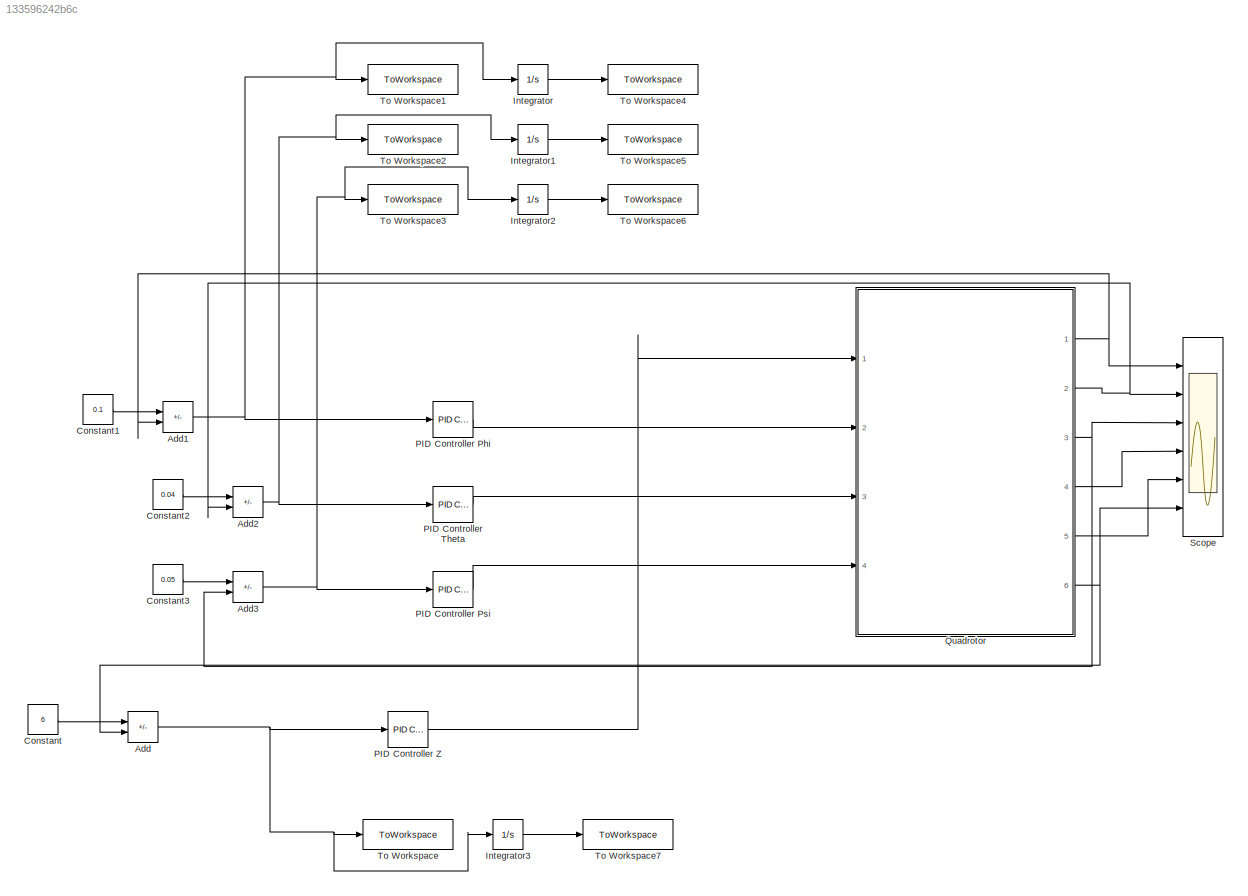
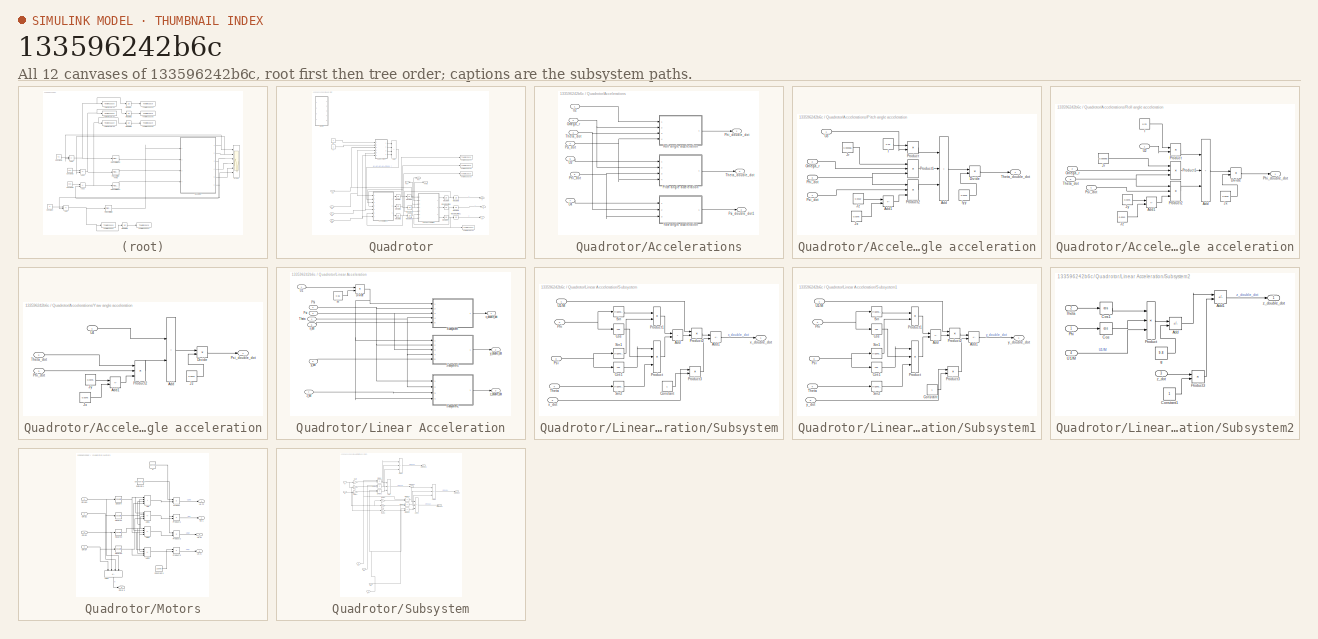
[diagram: thumbnail index - all 12 canvases of the model, root first then tree order]
MODEL slx_133596242b6c
KIND model
CONFIG AbsTol = auto
CONFIG EnableMultiTasking = off
CONFIG FixedStep = auto
CONFIG MaxStep = auto
CONFIG MinStep = auto
CONFIG RelTol = 1e-3
CONFIG SampleTimeConstraint = Unconstrained
CONFIG SolverName = VariableStepAuto
CONFIG StartTime = 0.0
CONFIG StopTime = 10.0
WORKSPACE source: mxarray member
WORKSPACE Ixx = 1
WORKSPACE Iyy: Simulink.Parameter (value not decoded)
WORKSPACE Izz = 1
BLOCK [Sum] Add
  IconShape = rectangular
  Inputs = +-
  Ports = [2, 1]
BLOCK [Sum] Add1
  IconShape = rectangular
  Inputs = +-
  Ports = [2, 1]
BLOCK [Sum] Add2
  IconShape = rectangular
  Inputs = +-
  Ports = [2, 1]
BLOCK [Sum] Add3
  IconShape = rectangular
  Inputs = +-
  Ports = [2, 1]
BLOCK [Constant] Constant
  Value = 6
BLOCK [Constant] Constant1
  Value = 0.1
BLOCK [Constant] Constant2
  Value = 0.04
BLOCK [Constant] Constant3
  Value = 0.05
BLOCK [Integrator] Integrator
  Ports = [1, 1]
BLOCK [Integrator] Integrator1
  Ports = [1, 1]
BLOCK [Integrator] Integrator2
  Ports = [1, 1]
BLOCK [Integrator] Integrator3
  Ports = [1, 1]
BLOCK [Reference] PID Controller Phi  REF=slpidlib/PID Controller
  Ports = [1, 1]
  SourceBlock = slpidlib/PID Controller
  SourceProductBaseCode = SL
  SourceType = PID 1dof
BLOCK [Reference] PID Controller Psi  REF=slpidlib/PID Controller
  Ports = [1, 1]
  SourceBlock = slpidlib/PID Controller
  SourceProductBaseCode = SL
  SourceType = PID 1dof
BLOCK [Reference] PID Controller Theta  REF=slpidlib/PID Controller
  Ports = [1, 1]
  SourceBlock = slpidlib/PID Controller
  SourceProductBaseCode = SL
  SourceType = PID 1dof
BLOCK [Reference] PID Controller Z  REF=slpidlib/PID Controller
  Ports = [1, 1]
  SourceBlock = slpidlib/PID Controller
  SourceProductBaseCode = SL
  SourceType = PID 1dof
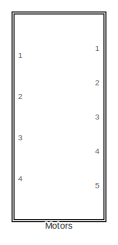
[diagram: Quadrotor - part 1/2, top left region]
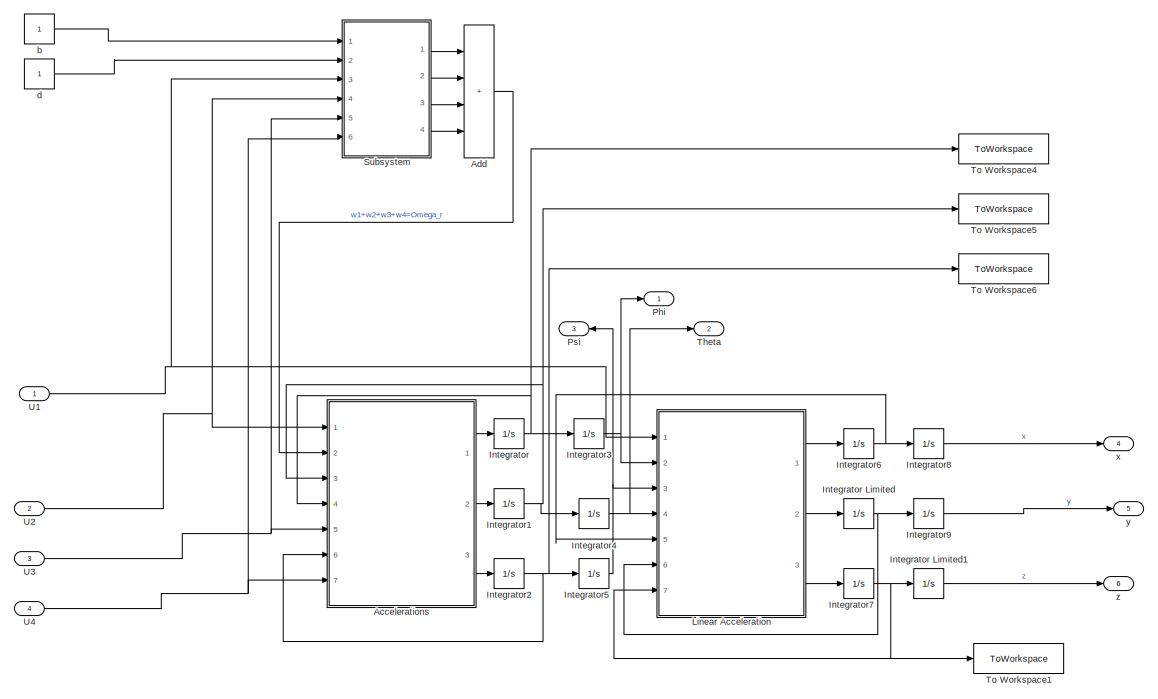
[diagram: Quadrotor - part 2/2, full width, middle band]
BLOCK [SubSystem] Quadrotor
  Ports = [4, 6]
  RequestExecContextInheritance = off
BLOCK [SubSystem] Quadrotor/Accelerations
  Ports = [7, 3]
  RequestExecContextInheritance = off
BLOCK [Inport] Quadrotor/Accelerations/Omega_r
  Port = 2
BLOCK [Inport] Quadrotor/Accelerations/Phi_dot
  Port = 6
BLOCK [Outport] Quadrotor/Accelerations/Phi_double_dot
BLOCK [SubSystem] Quadrotor/Accelerations/Pitch angle acceleration
  Ports = [4, 1]
  RequestExecContextInheritance = off
BLOCK [Sum] Quadrotor/Accelerations/Pitch angle acceleration/Add
  IconShape = rectangular
  Inputs = +++
  Ports = [3, 1]
BLOCK [Sum] Quadrotor/Accelerations/Pitch angle acceleration/Add1
  IconShape = rectangular
  Inputs = +-
  Ports = [2, 1]
BLOCK [Product] Quadrotor/Accelerations/Pitch angle acceleration/Divide
  Inputs = */
  Ports = [2, 1]
BLOCK [Constant] Quadrotor/Accelerations/Pitch angle acceleration/I
  Value = 0.23
BLOCK [Constant] Quadrotor/Accelerations/Pitch angle acceleration/Iyy
  Value = 0.0075
BLOCK [Constant] Quadrotor/Accelerations/Pitch angle acceleration/Jr
  Value = 0.000065
BLOCK [Constant] Quadrotor/Accelerations/Pitch angle acceleration/Jx
  Value = 0.0075
BLOCK [Constant] Quadrotor/Accelerations/Pitch angle acceleration/Jz
  Value = 0.0013
BLOCK [Inport] Quadrotor/Accelerations/Pitch angle acceleration/Omega_r
  Port = 2
BLOCK [Inport] Quadrotor/Accelerations/Pitch angle acceleration/Phi_dot
  Port = 3
BLOCK [Product] Quadrotor/Accelerations/Pitch angle acceleration/Product
  Ports = [2, 1]
BLOCK [Product] Quadrotor/Accelerations/Pitch angle acceleration/Product1
  Inputs = 3
  Ports = [3, 1]
BLOCK [Product] Quadrotor/Accelerations/Pitch angle acceleration/Product2
  Inputs = 3
  Ports = [3, 1]
BLOCK [Inport] Quadrotor/Accelerations/Pitch angle acceleration/Psi_dot
  Port = 4
BLOCK [Outport] Quadrotor/Accelerations/Pitch angle acceleration/Theta_double_dot
BLOCK [Inport] Quadrotor/Accelerations/Pitch angle acceleration/U3
BLOCK [Inport] Quadrotor/Accelerations/Psi_dot
  Port = 4
BLOCK [Outport] Quadrotor/Accelerations/Psi_double_dot1
  Port = 3
BLOCK [SubSystem] Quadrotor/Accelerations/Roll angle acceleration
  Ports = [4, 1]
  RequestExecContextInheritance = off
BLOCK [Sum] Quadrotor/Accelerations/Roll angle acceleration/Add
  IconShape = rectangular
  Inputs = +++
  Ports = [3, 1]
BLOCK [Sum] Quadrotor/Accelerations/Roll angle acceleration/Add1
  IconShape = rectangular
  Inputs = +-
  Ports = [2, 1]
BLOCK [Product] Quadrotor/Accelerations/Roll angle acceleration/Divide
  Inputs = */
  Ports = [2, 1]
BLOCK [Constant] Quadrotor/Accelerations/Roll angle acceleration/I
  Value = 0.23
BLOCK [Constant] Quadrotor/Accelerations/Roll angle acceleration/Jr
  Value = 0.000065
BLOCK [Constant] Quadrotor/Accelerations/Roll angle acceleration/Jx
  Value = 0.0075
BLOCK [Constant] Quadrotor/Accelerations/Roll angle acceleration/Jy
  Value = 0.0075
BLOCK [Constant] Quadrotor/Accelerations/Roll angle acceleration/Jz
  Value = 0.0013
BLOCK [Inport] Quadrotor/Accelerations/Roll angle acceleration/Omega_r
  Port = 2
BLOCK [Outport] Quadrotor/Accelerations/Roll angle acceleration/Phi_double_dot
BLOCK [Product] Quadrotor/Accelerations/Roll angle acceleration/Product
  Ports = [2, 1]
BLOCK [Product] Quadrotor/Accelerations/Roll angle acceleration/Product1
  Inputs = 3
  Ports = [3, 1]
BLOCK [Product] Quadrotor/Accelerations/Roll angle acceleration/Product2
  Inputs = 3
  Ports = [3, 1]
BLOCK [Inport] Quadrotor/Accelerations/Roll angle acceleration/Psi_dot
  Port = 4
BLOCK [Inport] Quadrotor/Accelerations/Roll angle acceleration/Theta_dot
  Port = 3
BLOCK [Inport] Quadrotor/Accelerations/Roll angle acceleration/U2
BLOCK [Inport] Quadrotor/Accelerations/Theta_dot
  Port = 3
BLOCK [Outport] Quadrotor/Accelerations/Theta_double_dot
  Port = 2
BLOCK [Inport] Quadrotor/Accelerations/U2
BLOCK [Inport] Quadrotor/Accelerations/U3
  Port = 5
BLOCK [Inport] Quadrotor/Accelerations/U4
  Port = 7
BLOCK [SubSystem] Quadrotor/Accelerations/Yaw angle acceleration
  Ports = [3, 1]
  RequestExecContextInheritance = off
BLOCK [Sum] Quadrotor/Accelerations/Yaw angle acceleration/Add
  IconShape = rectangular
  Ports = [2, 1]
BLOCK [Sum] Quadrotor/Accelerations/Yaw angle acceleration/Add1
  IconShape = rectangular
  Inputs = +-
  Ports = [2, 1]
BLOCK [Product] Quadrotor/Accelerations/Yaw angle acceleration/Divide
  Inputs = */
  Ports = [2, 1]
BLOCK [Constant] Quadrotor/Accelerations/Yaw angle acceleration/Jx
  Value = 0.0075
BLOCK [Constant] Quadrotor/Accelerations/Yaw angle acceleration/Jy
  Value = 0.0075
BLOCK [Constant] Quadrotor/Accelerations/Yaw angle acceleration/Jz
  Value = 0.0013
BLOCK [Inport] Quadrotor/Accelerations/Yaw angle acceleration/Phi_dot
  Port = 3
BLOCK [Product] Quadrotor/Accelerations/Yaw angle acceleration/Product2
  Inputs = 3
  Ports = [3, 1]
BLOCK [Outport] Quadrotor/Accelerations/Yaw angle acceleration/Psi_double_dot
BLOCK [Inport] Quadrotor/Accelerations/Yaw angle acceleration/Theta_dot
  Port = 2
BLOCK [Inport] Quadrotor/Accelerations/Yaw angle acceleration/U4
BLOCK [Sum] Quadrotor/Add
  IconShape = rectangular
  Inputs = ++++
  Ports = [4, 1]
BLOCK [Integrator] Quadrotor/Integrator
  Ports = [1, 1]
BLOCK [Integrator] Quadrotor/Integrator Limited
  LimitOutput = on
  LowerSaturationLimit = 0
  Ports = [1, 1]
  UpperSaturationLimit = 1
BLOCK [Integrator] Quadrotor/Integrator Limited1
  LimitOutput = on
  LowerSaturationLimit = 0
  Ports = [1, 1]
  UpperSaturationLimit = 1
BLOCK [Integrator] Quadrotor/Integrator1
  Ports = [1, 1]
BLOCK [Integrator] Quadrotor/Integrator2
  Ports = [1, 1]
BLOCK [Integrator] Quadrotor/Integrator3
  Ports = [1, 1]
BLOCK [Integrator] Quadrotor/Integrator4
  Ports = [1, 1]
BLOCK [Integrator] Quadrotor/Integrator5
  Ports = [1, 1]
BLOCK [Integrator] Quadrotor/Integrator6
  Ports = [1, 1]
BLOCK [Integrator] Quadrotor/Integrator7
  Ports = [1, 1]
BLOCK [Integrator] Quadrotor/Integrator8
  Ports = [1, 1]
BLOCK [Integrator] Quadrotor/Integrator9
  Ports = [1, 1]
BLOCK [SubSystem] Quadrotor/Linear Acceleration
  Ports = [7, 3]
  RequestExecContextInheritance = off
BLOCK [Product] Quadrotor/Linear Acceleration/Divide
  Inputs = */
  Ports = [2, 1]
BLOCK [Inport] Quadrotor/Linear Acceleration/Phi
  Port = 2
BLOCK [Inport] Quadrotor/Linear Acceleration/Psi
  Port = 3
BLOCK [SubSystem] Quadrotor/Linear Acceleration/Subsystem
  Ports = [5, 1]
  RequestExecContextInheritance = off
BLOCK [Sum] Quadrotor/Linear Acceleration/Subsystem/Add
  IconShape = rectangular
  Ports = [2, 1]
BLOCK [Sum] Quadrotor/Linear Acceleration/Subsystem/Add1
  IconShape = rectangular
  Inputs = +-
  Ports = [2, 1]
BLOCK [Constant] Quadrotor/Linear Acceleration/Subsystem/Constant
BLOCK [Trigonometry] Quadrotor/Linear Acceleration/Subsystem/Cos
  Operator = cos
  Ports = [1, 1]
BLOCK [Trigonometry] Quadrotor/Linear Acceleration/Subsystem/Cos1
  Operator = cos
  Ports = [1, 1]
BLOCK [Inport] Quadrotor/Linear Acceleration/Subsystem/Phi
  Port = 2
BLOCK [Product] Quadrotor/Linear Acceleration/Subsystem/Product
  Inputs = 3
  Ports = [3, 1]
BLOCK [Product] Quadrotor/Linear Acceleration/Subsystem/Product1
  Ports = [2, 1]
BLOCK [Product] Quadrotor/Linear Acceleration/Subsystem/Product2
  Ports = [2, 1]
BLOCK [Product] Quadrotor/Linear Acceleration/Subsystem/Product3
  Ports = [2, 1]
BLOCK [Inport] Quadrotor/Linear Acceleration/Subsystem/Psi
  Port = 3
BLOCK [Trigonometry] Quadrotor/Linear Acceleration/Subsystem/Sin
  Ports = [1, 1]
BLOCK [Trigonometry] Quadrotor/Linear Acceleration/Subsystem/Sin1
  Ports = [1, 1]
BLOCK [Trigonometry] Quadrotor/Linear Acceleration/Subsystem/Sin2
  Ports = [1, 1]
BLOCK [Inport] Quadrotor/Linear Acceleration/Subsystem/Theta
  Port = 4
BLOCK [Inport] Quadrotor/Linear Acceleration/Subsystem/U1//M
BLOCK [Inport] Quadrotor/Linear Acceleration/Subsystem/x_dot
  Port = 5
BLOCK [Outport] Quadrotor/Linear Acceleration/Subsystem/x_double_dot
BLOCK [SubSystem] Quadrotor/Linear Acceleration/Subsystem1
  Ports = [5, 1]
  RequestExecContextInheritance = off
BLOCK [Sum] Quadrotor/Linear Acceleration/Subsystem1/Add
  IconShape = rectangular
  Inputs = +-
  Ports = [2, 1]
BLOCK [Sum] Quadrotor/Linear Acceleration/Subsystem1/Add1
  IconShape = rectangular
  Inputs = +-
  Ports = [2, 1]
BLOCK [Constant] Quadrotor/Linear Acceleration/Subsystem1/Constant
BLOCK [Trigonometry] Quadrotor/Linear Acceleration/Subsystem1/Cos
  Operator = cos
  Ports = [1, 1]
BLOCK [Trigonometry] Quadrotor/Linear Acceleration/Subsystem1/Cos1
  Operator = cos
  Ports = [1, 1]
BLOCK [Inport] Quadrotor/Linear Acceleration/Subsystem1/Phi
  Port = 2
BLOCK [Product] Quadrotor/Linear Acceleration/Subsystem1/Product
  Inputs = 3
  Ports = [3, 1]
BLOCK [Product] Quadrotor/Linear Acceleration/Subsystem1/Product1
  Ports = [2, 1]
BLOCK [Product] Quadrotor/Linear Acceleration/Subsystem1/Product2
  Ports = [2, 1]
BLOCK [Product] Quadrotor/Linear Acceleration/Subsystem1/Product3
  Ports = [2, 1]
BLOCK [Inport] Quadrotor/Linear Acceleration/Subsystem1/Psi
  Port = 3
BLOCK [Trigonometry] Quadrotor/Linear Acceleration/Subsystem1/Sin
  Ports = [1, 1]
BLOCK [Trigonometry] Quadrotor/Linear Acceleration/Subsystem1/Sin1
  Ports = [1, 1]
BLOCK [Trigonometry] Quadrotor/Linear Acceleration/Subsystem1/Sin2
  Ports = [1, 1]
BLOCK [Inport] Quadrotor/Linear Acceleration/Subsystem1/Theta
  Port = 4
BLOCK [Inport] Quadrotor/Linear Acceleration/Subsystem1/U1//M
BLOCK [Inport] Quadrotor/Linear Acceleration/Subsystem1/y_dot
  Port = 5
BLOCK [Outport] Quadrotor/Linear Acceleration/Subsystem1/y_double_dot
BLOCK [SubSystem] Quadrotor/Linear Acceleration/Subsystem2
  Ports = [4, 1]
  RequestExecContextInheritance = off
BLOCK [Sum] Quadrotor/Linear Acceleration/Subsystem2/Add
  IconShape = rectangular
  Inputs = +-
  Ports = [2, 1]
BLOCK [Sum] Quadrotor/Linear Acceleration/Subsystem2/Add1
  IconShape = rectangular
  Inputs = +-
  Ports = [2, 1]
BLOCK [Constant] Quadrotor/Linear Acceleration/Subsystem2/Constant1
BLOCK [Trigonometry] Quadrotor/Linear Acceleration/Subsystem2/Cos
  Operator = cos
  Ports = [1, 1]
BLOCK [Trigonometry] Quadrotor/Linear Acceleration/Subsystem2/Cos1
  Operator = cos
  Ports = [1, 1]
BLOCK [Inport] Quadrotor/Linear Acceleration/Subsystem2/Phi
BLOCK [Product] Quadrotor/Linear Acceleration/Subsystem2/Product
  Inputs = 3
  Ports = [3, 1]
BLOCK [Product] Quadrotor/Linear Acceleration/Subsystem2/Product3
  Ports = [2, 1]
BLOCK [Inport] Quadrotor/Linear Acceleration/Subsystem2/Theta
  Port = 2
BLOCK [Inport] Quadrotor/Linear Acceleration/Subsystem2/U1//M
  Port = 4
BLOCK [Constant] Quadrotor/Linear Acceleration/Subsystem2/g
  Value = 9.8
BLOCK [Inport] Quadrotor/Linear Acceleration/Subsystem2/z_dot
  Port = 3
BLOCK [Outport] Quadrotor/Linear Acceleration/Subsystem2/z_double_dot
BLOCK [Inport] Quadrotor/Linear Acceleration/Theta
  Port = 4
BLOCK [Inport] Quadrotor/Linear Acceleration/U1
BLOCK [Constant] Quadrotor/Linear Acceleration/m
  Value = 0.65
BLOCK [Inport] Quadrotor/Linear Acceleration/x_dot
  Port = 5
BLOCK [Outport] Quadrotor/Linear Acceleration/x_double_dot
BLOCK [Inport] Quadrotor/Linear Acceleration/y_dot
  Port = 6
BLOCK [Outport] Quadrotor/Linear Acceleration/y_double_dot
  Port = 2
BLOCK [Inport] Quadrotor/Linear Acceleration/z_dot
  Port = 7
BLOCK [Outport] Quadrotor/Linear Acceleration/z_double_dot
  Port = 3
BLOCK [SubSystem] Quadrotor/Motors
  Commented = on
  Ports = [4, 5]
  RequestExecContextInheritance = off
BLOCK [Sum] Quadrotor/Motors/Add
  IconShape = rectangular
  Inputs = ++++
  Ports = [4, 1]
BLOCK [Sum] Quadrotor/Motors/Add1
  IconShape = rectangular
  Inputs = +--+
  Ports = [4, 1]
BLOCK [Sum] Quadrotor/Motors/Add2
  IconShape = rectangular
  Inputs = --++
  Ports = [4, 1]
BLOCK [Sum] Quadrotor/Motors/Add3
  IconShape = rectangular
  Inputs = +-+-
  Ports = [4, 1]
BLOCK [Sum] Quadrotor/Motors/Add4
  IconShape = rectangular
  Inputs = -+-+
  NameLocation = left
  Ports = [4, 1]
BLOCK [Constant] Quadrotor/Motors/Constant1
  Value = 2.08e-6
BLOCK [Inport] Quadrotor/Motors/Omeg1
BLOCK [Outport] Quadrotor/Motors/Omg 5
  Port = 5
BLOCK [Inport] Quadrotor/Motors/Omg2
  Port = 2
BLOCK [Inport] Quadrotor/Motors/Omg3
  Port = 3
BLOCK [Inport] Quadrotor/Motors/Omg4
  Port = 4
BLOCK [Product] Quadrotor/Motors/Product
  Ports = [2, 1]
BLOCK [Product] Quadrotor/Motors/Product1
  Ports = [2, 1]
BLOCK [Product] Quadrotor/Motors/Product2
  Ports = [2, 1]
BLOCK [Product] Quadrotor/Motors/Product3
  Ports = [2, 1]
BLOCK [Math] Quadrotor/Motors/Square
  Operator = square
  Ports = [1, 1]
BLOCK [Math] Quadrotor/Motors/Square1
  Operator = square
  Ports = [1, 1]
BLOCK [Math] Quadrotor/Motors/Square2
  Operator = square
  Ports = [1, 1]
BLOCK [Math] Quadrotor/Motors/Square3
  Operator = square
  Ports = [1, 1]
BLOCK [Outport] Quadrotor/Motors/U1,Fz
BLOCK [Outport] Quadrotor/Motors/U2,L
  Port = 2
BLOCK [Outport] Quadrotor/Motors/U3,M
  Port = 3
BLOCK [Outport] Quadrotor/Motors/U4,N
  Port = 4
BLOCK [Constant] Quadrotor/Motors/b
  Value = 0.04439
BLOCK [Constant] Quadrotor/Motors/bsin(pi//4)
  Value = 0.04439*sin(pi/4)
BLOCK [Outport] Quadrotor/Phi
BLOCK [Outport] Quadrotor/Psi
  Port = 3
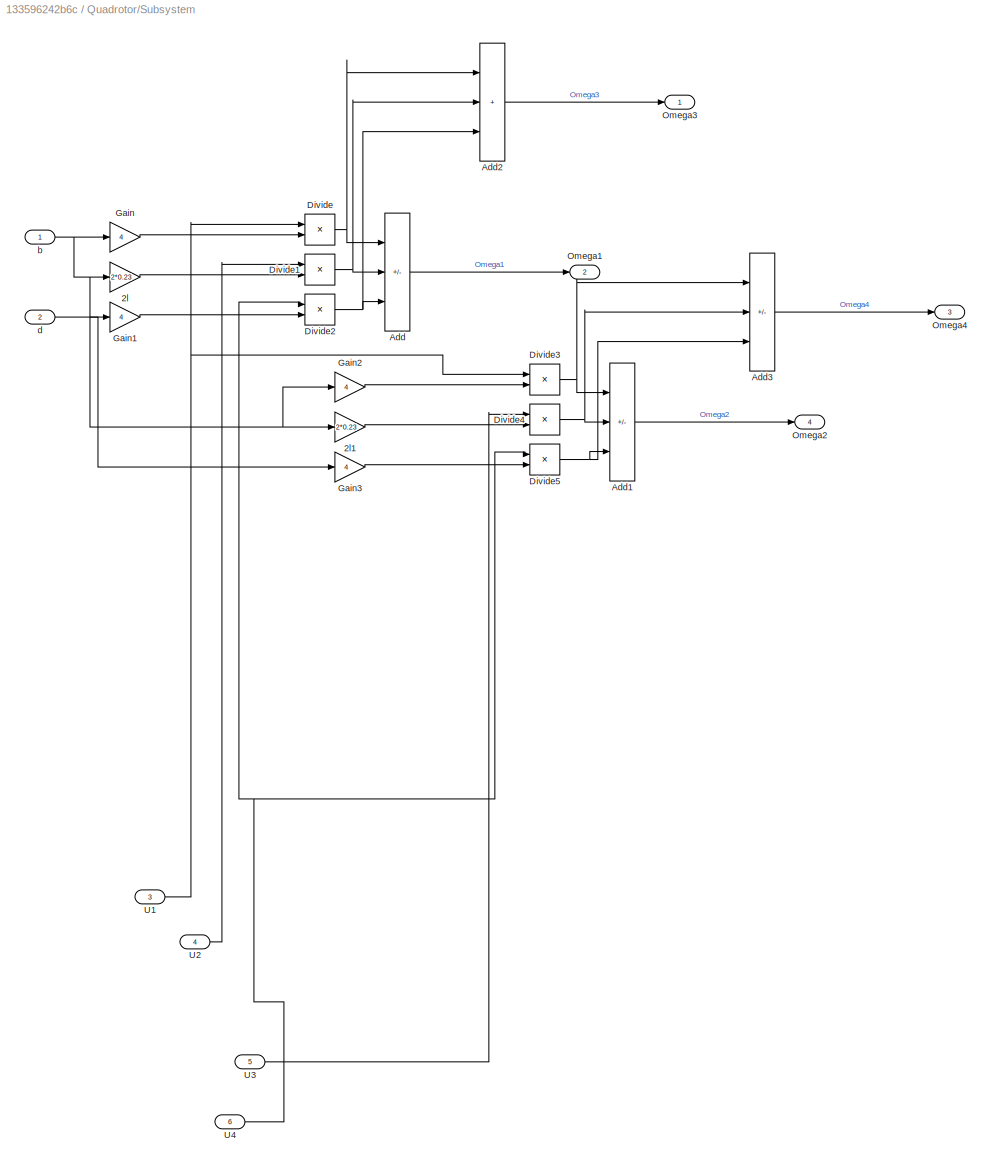
BLOCK [SubSystem] Quadrotor/Subsystem
  Ports = [6, 4]
  RequestExecContextInheritance = off
BLOCK [Gain] Quadrotor/Subsystem/2l
  Gain = 2*0.23
BLOCK [Gain] Quadrotor/Subsystem/2l1
  Gain = 2*0.23
BLOCK [Sum] Quadrotor/Subsystem/Add
  IconShape = rectangular
  Inputs = +-+
  Ports = [3, 1]
BLOCK [Sum] Quadrotor/Subsystem/Add1
  IconShape = rectangular
  Inputs = ++-
  Ports = [3, 1]
BLOCK [Sum] Quadrotor/Subsystem/Add2
  IconShape = rectangular
  Inputs = +++
  Ports = [3, 1]
BLOCK [Sum] Quadrotor/Subsystem/Add3
  IconShape = rectangular
  Inputs = +--
  Ports = [3, 1]
BLOCK [Product] Quadrotor/Subsystem/Divide
  Inputs = */
  Ports = [2, 1]
BLOCK [Product] Quadrotor/Subsystem/Divide1
  Inputs = */
  Ports = [2, 1]
BLOCK [Product] Quadrotor/Subsystem/Divide2
  Inputs = */
  Ports = [2, 1]
BLOCK [Product] Quadrotor/Subsystem/Divide3
  Inputs = */
  Ports = [2, 1]
BLOCK [Product] Quadrotor/Subsystem/Divide4
  Inputs = */
  Ports = [2, 1]
BLOCK [Product] Quadrotor/Subsystem/Divide5
  Inputs = */
  Ports = [2, 1]
BLOCK [Gain] Quadrotor/Subsystem/Gain
  Gain = 4
BLOCK [Gain] Quadrotor/Subsystem/Gain1
  Gain = 4
BLOCK [Gain] Quadrotor/Subsystem/Gain2
  Gain = 4
BLOCK [Gain] Quadrotor/Subsystem/Gain3
  Gain = 4
BLOCK [Outport] Quadrotor/Subsystem/Omega1
  Port = 2
BLOCK [Outport] Quadrotor/Subsystem/Omega2
  Port = 4
BLOCK [Outport] Quadrotor/Subsystem/Omega3
BLOCK [Outport] Quadrotor/Subsystem/Omega4
  Port = 3
BLOCK [Inport] Quadrotor/Subsystem/U1
  Port = 3
BLOCK [Inport] Quadrotor/Subsystem/U2
  Port = 4
BLOCK [Inport] Quadrotor/Subsystem/U3
  Port = 5
BLOCK [Inport] Quadrotor/Subsystem/U4
  Port = 6
BLOCK [Inport] Quadrotor/Subsystem/b
BLOCK [Inport] Quadrotor/Subsystem/d
  Port = 2
BLOCK [Outport] Quadrotor/Theta
  Port = 2
BLOCK [ToWorkspace] Quadrotor/To Workspace1
  FixptAsFi = on
  MaxDataPoints = inf
  Ports = [1]
  SampleTime = -1
  SaveFormat = Timeseries
  VariableName = z_dot
BLOCK [ToWorkspace] Quadrotor/To Workspace4
  FixptAsFi = on
  MaxDataPoints = inf
  Ports = [1]
  SampleTime = -1
  SaveFormat = Timeseries
  VariableName = phi_dot
BLOCK [ToWorkspace] Quadrotor/To Workspace5
  FixptAsFi = on
  MaxDataPoints = inf
  Ports = [1]
  SampleTime = -1
  SaveFormat = Timeseries
  VariableName = theta_dot
BLOCK [ToWorkspace] Quadrotor/To Workspace6
  FixptAsFi = on
  MaxDataPoints = inf
  Ports = [1]
  SampleTime = -1
  SaveFormat = Timeseries
  VariableName = psi_dot
BLOCK [Inport] Quadrotor/U1
BLOCK [Inport] Quadrotor/U2
  Port = 2
BLOCK [Inport] Quadrotor/U3
  Port = 3
BLOCK [Inport] Quadrotor/U4
  Port = 4
BLOCK [Constant] Quadrotor/b
BLOCK [Constant] Quadrotor/d
BLOCK [Outport] Quadrotor/x
  Port = 4
BLOCK [Outport] Quadrotor/y
  Port = 5
BLOCK [Outport] Quadrotor/z
  Port = 6
BLOCK [Scope] Scope
  Floating = off
  NumInputPorts = 6
  Ports = [6]
  ScopeSpecificationString = Simulink.scopes.TimeScopeBlockCfg('CurrentConfiguration', extmgr.ConfigurationSet(extmgr.Configuration('Core','General UI',true),extmgr.Configuration('Core','Source UI',true),extmgr.Configuration('Sources','WiredSimulink',true),extmgr.Configuration('Visuals','Time Domain',true,'SerializedDisplays',{struct('MinYLimReal','-2.26997','MaxYLimReal','20.42976','YLabelReal','','MinYLimMag','0.00000','Max...<+1616ch>
BLOCK [ToWorkspace] To Workspace
  FixptAsFi = on
  MaxDataPoints = inf
  Ports = [1]
  SampleTime = -1
  SaveFormat = Timeseries
  VariableName = e_z
BLOCK [ToWorkspace] To Workspace1
  FixptAsFi = on
  MaxDataPoints = inf
  Ports = [1]
  SampleTime = -1
  SaveFormat = Timeseries
  VariableName = e_phi
BLOCK [ToWorkspace] To Workspace2
  FixptAsFi = on
  MaxDataPoints = inf
  Ports = [1]
  SampleTime = -1
  SaveFormat = Timeseries
  VariableName = e_theta
BLOCK [ToWorkspace] To Workspace3
  FixptAsFi = on
  MaxDataPoints = inf
  Ports = [1]
  SampleTime = -1
  SaveFormat = Timeseries
  VariableName = e_psi
BLOCK [ToWorkspace] To Workspace4
  FixptAsFi = on
  MaxDataPoints = inf
  Ports = [1]
  SampleTime = -1
  SaveFormat = Timeseries
  VariableName = Int_e_phi
BLOCK [ToWorkspace] To Workspace5
  FixptAsFi = on
  MaxDataPoints = inf
  Ports = [1]
  SampleTime = -1
  SaveFormat = Timeseries
  VariableName = Int_e_theta
BLOCK [ToWorkspace] To Workspace6
  FixptAsFi = on
  MaxDataPoints = inf
  Ports = [1]
  SampleTime = -1
  SaveFormat = Timeseries
  VariableName = Int_e_psi
BLOCK [ToWorkspace] To Workspace7
  FixptAsFi = on
  MaxDataPoints = inf
  Ports = [1]
  SampleTime = -1
  SaveFormat = Timeseries
  VariableName = Int_e_z
NET Add1:1 -> Integrator:1, PID Controller Phi:1, To Workspace1:1
NET Add2:1 -> Integrator1:1, PID Controller Theta:1, To Workspace2:1
NET Add3:1 -> Integrator2:1, PID Controller Psi:1, To Workspace3:1
NET Add:1 -> Integrator3:1, PID Controller Z:1, To Workspace:1
LINE Constant1:1 -> Add1:1
LINE Constant2:1 -> Add2:1
LINE Constant3:1 -> Add3:1
LINE Constant:1 -> Add:1
LINE Integrator1:1 -> To Workspace5:1
LINE Integrator2:1 -> To Workspace6:1
LINE Integrator3:1 -> To Workspace7:1
LINE Integrator:1 -> To Workspace4:1
LINE PID Controller Phi:1 -> Quadrotor:2
LINE PID Controller Psi:1 -> Quadrotor:4
LINE PID Controller Theta:1 -> Quadrotor:3
LINE PID Controller Z:1 -> Quadrotor:1
NET Quadrotor/Accelerations/Omega_r:1 -> Quadrotor/Accelerations/Pitch angle acceleration:2, Quadrotor/Accelerations/Roll angle acceleration:2
NET Quadrotor/Accelerations/Phi_dot:1 -> Quadrotor/Accelerations/Pitch angle acceleration:3, Quadrotor/Accelerations/Yaw angle acceleration:3
LINE Quadrotor/Accelerations/Pitch angle acceleration/Add1:1 -> Quadrotor/Accelerations/Pitch angle acceleration/Product2:3
LINE Quadrotor/Accelerations/Pitch angle acceleration/Add:1 -> Quadrotor/Accelerations/Pitch angle acceleration/Divide:1
LINE Quadrotor/Accelerations/Pitch angle acceleration/Divide:1 -> Quadrotor/Accelerations/Pitch angle acceleration/Theta_double_dot:1
LINE Quadrotor/Accelerations/Pitch angle acceleration/I:1 -> Quadrotor/Accelerations/Pitch angle acceleration/Product:1
LINE Quadrotor/Accelerations/Pitch angle acceleration/Iyy:1 -> Quadrotor/Accelerations/Pitch angle acceleration/Divide:2
LINE Quadrotor/Accelerations/Pitch angle acceleration/Jr:1 -> Quadrotor/Accelerations/Pitch angle acceleration/Product1:1
LINE Quadrotor/Accelerations/Pitch angle acceleration/Jx:1 -> Quadrotor/Accelerations/Pitch angle acceleration/Add1:2
LINE Quadrotor/Accelerations/Pitch angle acceleration/Jz:1 -> Quadrotor/Accelerations/Pitch angle acceleration/Add1:1
LINE Quadrotor/Accelerations/Pitch angle acceleration/Omega_r:1 -> Quadrotor/Accelerations/Pitch angle acceleration/Product1:2
NET Quadrotor/Accelerations/Pitch angle acceleration/Phi_dot:1 -> Quadrotor/Accelerations/Pitch angle acceleration/Product1:3, Quadrotor/Accelerations/Pitch angle acceleration/Product2:1
LINE Quadrotor/Accelerations/Pitch angle acceleration/Product1:1 -> Quadrotor/Accelerations/Pitch angle acceleration/Add:2
LINE Quadrotor/Accelerations/Pitch angle acceleration/Product2:1 -> Quadrotor/Accelerations/Pitch angle acceleration/Add:3
LINE Quadrotor/Accelerations/Pitch angle acceleration/Product:1 -> Quadrotor/Accelerations/Pitch angle acceleration/Add:1
LINE Quadrotor/Accelerations/Pitch angle acceleration/Psi_dot:1 -> Quadrotor/Accelerations/Pitch angle acceleration/Product2:2
LINE Quadrotor/Accelerations/Pitch angle acceleration/U3:1 -> Quadrotor/Accelerations/Pitch angle acceleration/Product:2
LINE Quadrotor/Accelerations/Pitch angle acceleration:1 -> Quadrotor/Accelerations/Theta_double_dot:1
NET Quadrotor/Accelerations/Psi_dot:1 -> Quadrotor/Accelerations/Pitch angle acceleration:4, Quadrotor/Accelerations/Roll angle acceleration:4
LINE Quadrotor/Accelerations/Roll angle acceleration/Add1:1 -> Quadrotor/Accelerations/Roll angle acceleration/Product2:3
LINE Quadrotor/Accelerations/Roll angle acceleration/Add:1 -> Quadrotor/Accelerations/Roll angle acceleration/Divide:1
LINE Quadrotor/Accelerations/Roll angle acceleration/Divide:1 -> Quadrotor/Accelerations/Roll angle acceleration/Phi_double_dot:1
LINE Quadrotor/Accelerations/Roll angle acceleration/I:1 -> Quadrotor/Accelerations/Roll angle acceleration/Product:1
LINE Quadrotor/Accelerations/Roll angle acceleration/Jr:1 -> Quadrotor/Accelerations/Roll angle acceleration/Product1:1
LINE Quadrotor/Accelerations/Roll angle acceleration/Jx:1 -> Quadrotor/Accelerations/Roll angle acceleration/Divide:2
LINE Quadrotor/Accelerations/Roll angle acceleration/Jy:1 -> Quadrotor/Accelerations/Roll angle acceleration/Add1:1
LINE Quadrotor/Accelerations/Roll angle acceleration/Jz:1 -> Quadrotor/Accelerations/Roll angle acceleration/Add1:2
LINE Quadrotor/Accelerations/Roll angle acceleration/Omega_r:1 -> Quadrotor/Accelerations/Roll angle acceleration/Product1:2
LINE Quadrotor/Accelerations/Roll angle acceleration/Product1:1 -> Quadrotor/Accelerations/Roll angle acceleration/Add:2
LINE Quadrotor/Accelerations/Roll angle acceleration/Product2:1 -> Quadrotor/Accelerations/Roll angle acceleration/Add:3
LINE Quadrotor/Accelerations/Roll angle acceleration/Product:1 -> Quadrotor/Accelerations/Roll angle acceleration/Add:1
LINE Quadrotor/Accelerations/Roll angle acceleration/Psi_dot:1 -> Quadrotor/Accelerations/Roll angle acceleration/Product2:2
NET Quadrotor/Accelerations/Roll angle acceleration/Theta_dot:1 -> Quadrotor/Accelerations/Roll angle acceleration/Product1:3, Quadrotor/Accelerations/Roll angle acceleration/Product2:1
LINE Quadrotor/Accelerations/Roll angle acceleration/U2:1 -> Quadrotor/Accelerations/Roll angle acceleration/Product:2
LINE Quadrotor/Accelerations/Roll angle acceleration:1 -> Quadrotor/Accelerations/Phi_double_dot:1
NET Quadrotor/Accelerations/Theta_dot:1 -> Quadrotor/Accelerations/Roll angle acceleration:3, Quadrotor/Accelerations/Yaw angle acceleration:2
LINE Quadrotor/Accelerations/U2:1 -> Quadrotor/Accelerations/Roll angle acceleration:1
LINE Quadrotor/Accelerations/U3:1 -> Quadrotor/Accelerations/Pitch angle acceleration:1
LINE Quadrotor/Accelerations/U4:1 -> Quadrotor/Accelerations/Yaw angle acceleration:1
LINE Quadrotor/Accelerations/Yaw angle acceleration/Add1:1 -> Quadrotor/Accelerations/Yaw angle acceleration/Product2:3
LINE Quadrotor/Accelerations/Yaw angle acceleration/Add:1 -> Quadrotor/Accelerations/Yaw angle acceleration/Divide:1
LINE Quadrotor/Accelerations/Yaw angle acceleration/Divide:1 -> Quadrotor/Accelerations/Yaw angle acceleration/Psi_double_dot:1
LINE Quadrotor/Accelerations/Yaw angle acceleration/Jx:1 -> Quadrotor/Accelerations/Yaw angle acceleration/Add1:2
LINE Quadrotor/Accelerations/Yaw angle acceleration/Jy:1 -> Quadrotor/Accelerations/Yaw angle acceleration/Add1:1
LINE Quadrotor/Accelerations/Yaw angle acceleration/Jz:1 -> Quadrotor/Accelerations/Yaw angle acceleration/Divide:2
LINE Quadrotor/Accelerations/Yaw angle acceleration/Phi_dot:1 -> Quadrotor/Accelerations/Yaw angle acceleration/Product2:2
LINE Quadrotor/Accelerations/Yaw angle acceleration/Product2:1 -> Quadrotor/Accelerations/Yaw angle acceleration/Add:2
LINE Quadrotor/Accelerations/Yaw angle acceleration/Theta_dot:1 -> Quadrotor/Accelerations/Yaw angle acceleration/Product2:1
LINE Quadrotor/Accelerations/Yaw angle acceleration/U4:1 -> Quadrotor/Accelerations/Yaw angle acceleration/Add:1
LINE Quadrotor/Accelerations/Yaw angle acceleration:1 -> Quadrotor/Accelerations/Psi_double_dot1:1
LINE Quadrotor/Accelerations:1 -> Quadrotor/Integrator:1
LINE Quadrotor/Accelerations:2 -> Quadrotor/Integrator1:1
LINE Quadrotor/Accelerations:3 -> Quadrotor/Integrator2:1
LINE Quadrotor/Add:1 -> Quadrotor/Accelerations:2
LINE Quadrotor/Integrator Limited1:1 -> Quadrotor/z:1
NET Quadrotor/Integrator Limited:1 -> Quadrotor/Integrator9:1, Quadrotor/Linear Acceleration:6
NET Quadrotor/Integrator1:1 -> Quadrotor/Accelerations:3, Quadrotor/Integrator4:1, Quadrotor/To Workspace5:1
NET Quadrotor/Integrator2:1 -> Quadrotor/Accelerations:6, Quadrotor/Integrator5:1, Quadrotor/To Workspace6:1
NET Quadrotor/Integrator3:1 -> Quadrotor/Linear Acceleration:2, Quadrotor/Phi:1
NET Quadrotor/Integrator4:1 -> Quadrotor/Linear Acceleration:4, Quadrotor/Theta:1
NET Quadrotor/Integrator5:1 -> Quadrotor/Linear Acceleration:3, Quadrotor/Psi:1
NET Quadrotor/Integrator6:1 -> Quadrotor/Integrator8:1, Quadrotor/Linear Acceleration:5
NET Quadrotor/Integrator7:1 -> Quadrotor/Integrator Limited1:1, Quadrotor/Linear Acceleration:7, Quadrotor/To Workspace1:1
LINE Quadrotor/Integrator8:1 -> Quadrotor/x:1
LINE Quadrotor/Integrator9:1 -> Quadrotor/y:1
NET Quadrotor/Integrator:1 -> Quadrotor/Accelerations:4, Quadrotor/Integrator3:1, Quadrotor/To Workspace4:1
NET Quadrotor/Linear Acceleration/Divide:1 -> Quadrotor/Linear Acceleration/Subsystem1:1, Quadrotor/Linear Acceleration/Subsystem2:4, Quadrotor/Linear Acceleration/Subsystem:1
NET Quadrotor/Linear Acceleration/Phi:1 -> Quadrotor/Linear Acceleration/Subsystem1:2, Quadrotor/Linear Acceleration/Subsystem2:1, Quadrotor/Linear Acceleration/Subsystem:2
NET Quadrotor/Linear Acceleration/Psi:1 -> Quadrotor/Linear Acceleration/Subsystem1:3, Quadrotor/Linear Acceleration/Subsystem:3
LINE Quadrotor/Linear Acceleration/Subsystem/Add1:1 -> Quadrotor/Linear Acceleration/Subsystem/x_double_dot:1
LINE Quadrotor/Linear Acceleration/Subsystem/Add:1 -> Quadrotor/Linear Acceleration/Subsystem/Product2:2
LINE Quadrotor/Linear Acceleration/Subsystem/Constant:1 -> Quadrotor/Linear Acceleration/Subsystem/Product3:2
LINE Quadrotor/Linear Acceleration/Subsystem/Cos1:1 -> Quadrotor/Linear Acceleration/Subsystem/Product:1
LINE Quadrotor/Linear Acceleration/Subsystem/Cos:1 -> Quadrotor/Linear Acceleration/Subsystem/Product:2
NET Quadrotor/Linear Acceleration/Subsystem/Phi:1 -> Quadrotor/Linear Acceleration/Subsystem/Cos:1, Quadrotor/Linear Acceleration/Subsystem/Sin:1
LINE Quadrotor/Linear Acceleration/Subsystem/Product1:1 -> Quadrotor/Linear Acceleration/Subsystem/Add:1
LINE Quadrotor/Linear Acceleration/Subsystem/Product2:1 -> Quadrotor/Linear Acceleration/Subsystem/Add1:1
LINE Quadrotor/Linear Acceleration/Subsystem/Product3:1 -> Quadrotor/Linear Acceleration/Subsystem/Add1:2
LINE Quadrotor/Linear Acceleration/Subsystem/Product:1 -> Quadrotor/Linear Acceleration/Subsystem/Add:2
NET Quadrotor/Linear Acceleration/Subsystem/Psi:1 -> Quadrotor/Linear Acceleration/Subsystem/Cos1:1, Quadrotor/Linear Acceleration/Subsystem/Sin1:1
LINE Quadrotor/Linear Acceleration/Subsystem/Sin1:1 -> Quadrotor/Linear Acceleration/Subsystem/Product1:2
LINE Quadrotor/Linear Acceleration/Subsystem/Sin2:1 -> Quadrotor/Linear Acceleration/Subsystem/Product:3
LINE Quadrotor/Linear Acceleration/Subsystem/Sin:1 -> Quadrotor/Linear Acceleration/Subsystem/Product1:1
LINE Quadrotor/Linear Acceleration/Subsystem/Theta:1 -> Quadrotor/Linear Acceleration/Subsystem/Sin2:1
LINE Quadrotor/Linear Acceleration/Subsystem/U1//M:1 -> Quadrotor/Linear Acceleration/Subsystem/Product2:1
LINE Quadrotor/Linear Acceleration/Subsystem/x_dot:1 -> Quadrotor/Linear Acceleration/Subsystem/Product3:1
LINE Quadrotor/Linear Acceleration/Subsystem1/Add1:1 -> Quadrotor/Linear Acceleration/Subsystem1/y_double_dot:1
LINE Quadrotor/Linear Acceleration/Subsystem1/Add:1 -> Quadrotor/Linear Acceleration/Subsystem1/Product2:2
LINE Quadrotor/Linear Acceleration/Subsystem1/Constant:1 -> Quadrotor/Linear Acceleration/Subsystem1/Product3:2
LINE Quadrotor/Linear Acceleration/Subsystem1/Cos1:1 -> Quadrotor/Linear Acceleration/Subsystem1/Product:1
LINE Quadrotor/Linear Acceleration/Subsystem1/Cos:1 -> Quadrotor/Linear Acceleration/Subsystem1/Product:2
NET Quadrotor/Linear Acceleration/Subsystem1/Phi:1 -> Quadrotor/Linear Acceleration/Subsystem1/Cos:1, Quadrotor/Linear Acceleration/Subsystem1/Sin:1
LINE Quadrotor/Linear Acceleration/Subsystem1/Product1:1 -> Quadrotor/Linear Acceleration/Subsystem1/Add:1
LINE Quadrotor/Linear Acceleration/Subsystem1/Product2:1 -> Quadrotor/Linear Acceleration/Subsystem1/Add1:1
LINE Quadrotor/Linear Acceleration/Subsystem1/Product3:1 -> Quadrotor/Linear Acceleration/Subsystem1/Add1:2
LINE Quadrotor/Linear Acceleration/Subsystem1/Product:1 -> Quadrotor/Linear Acceleration/Subsystem1/Add:2
NET Quadrotor/Linear Acceleration/Subsystem1/Psi:1 -> Quadrotor/Linear Acceleration/Subsystem1/Cos1:1, Quadrotor/Linear Acceleration/Subsystem1/Sin1:1
LINE Quadrotor/Linear Acceleration/Subsystem1/Sin1:1 -> Quadrotor/Linear Acceleration/Subsystem1/Product1:2
LINE Quadrotor/Linear Acceleration/Subsystem1/Sin2:1 -> Quadrotor/Linear Acceleration/Subsystem1/Product:3
LINE Quadrotor/Linear Acceleration/Subsystem1/Sin:1 -> Quadrotor/Linear Acceleration/Subsystem1/Product1:1
LINE Quadrotor/Linear Acceleration/Subsystem1/Theta:1 -> Quadrotor/Linear Acceleration/Subsystem1/Sin2:1
LINE Quadrotor/Linear Acceleration/Subsystem1/U1//M:1 -> Quadrotor/Linear Acceleration/Subsystem1/Product2:1
LINE Quadrotor/Linear Acceleration/Subsystem1/y_dot:1 -> Quadrotor/Linear Acceleration/Subsystem1/Product3:1
LINE Quadrotor/Linear Acceleration/Subsystem1:1 -> Quadrotor/Linear Acceleration/y_double_dot:1
LINE Quadrotor/Linear Acceleration/Subsystem2/Add1:1 -> Quadrotor/Linear Acceleration/Subsystem2/z_double_dot:1
LINE Quadrotor/Linear Acceleration/Subsystem2/Add:1 -> Quadrotor/Linear Acceleration/Subsystem2/Add1:1
LINE Quadrotor/Linear Acceleration/Subsystem2/Constant1:1 -> Quadrotor/Linear Acceleration/Subsystem2/Product3:2
LINE Quadrotor/Linear Acceleration/Subsystem2/Cos1:1 -> Quadrotor/Linear Acceleration/Subsystem2/Product:1
LINE Quadrotor/Linear Acceleration/Subsystem2/Cos:1 -> Quadrotor/Linear Acceleration/Subsystem2/Product:2
LINE Quadrotor/Linear Acceleration/Subsystem2/Phi:1 -> Quadrotor/Linear Acceleration/Subsystem2/Cos:1
LINE Quadrotor/Linear Acceleration/Subsystem2/Product3:1 -> Quadrotor/Linear Acceleration/Subsystem2/Add1:2
LINE Quadrotor/Linear Acceleration/Subsystem2/Product:1 -> Quadrotor/Linear Acceleration/Subsystem2/Add:1
LINE Quadrotor/Linear Acceleration/Subsystem2/Theta:1 -> Quadrotor/Linear Acceleration/Subsystem2/Cos1:1
LINE Quadrotor/Linear Acceleration/Subsystem2/U1//M:1 -> Quadrotor/Linear Acceleration/Subsystem2/Product:3
LINE Quadrotor/Linear Acceleration/Subsystem2/g:1 -> Quadrotor/Linear Acceleration/Subsystem2/Add:2
LINE Quadrotor/Linear Acceleration/Subsystem2/z_dot:1 -> Quadrotor/Linear Acceleration/Subsystem2/Product3:1
LINE Quadrotor/Linear Acceleration/Subsystem2:1 -> Quadrotor/Linear Acceleration/z_double_dot:1
LINE Quadrotor/Linear Acceleration/Subsystem:1 -> Quadrotor/Linear Acceleration/x_double_dot:1
NET Quadrotor/Linear Acceleration/Theta:1 -> Quadrotor/Linear Acceleration/Subsystem1:4, Quadrotor/Linear Acceleration/Subsystem2:2, Quadrotor/Linear Acceleration/Subsystem:4
LINE Quadrotor/Linear Acceleration/U1:1 -> Quadrotor/Linear Acceleration/Divide:1
LINE Quadrotor/Linear Acceleration/m:1 -> Quadrotor/Linear Acceleration/Divide:2
LINE Quadrotor/Linear Acceleration/x_dot:1 -> Quadrotor/Linear Acceleration/Subsystem:5
LINE Quadrotor/Linear Acceleration/y_dot:1 -> Quadrotor/Linear Acceleration/Subsystem1:5
LINE Quadrotor/Linear Acceleration/z_dot:1 -> Quadrotor/Linear Acceleration/Subsystem2:3
LINE Quadrotor/Linear Acceleration:1 -> Quadrotor/Integrator6:1
LINE Quadrotor/Linear Acceleration:2 -> Quadrotor/Integrator Limited:1
LINE Quadrotor/Linear Acceleration:3 -> Quadrotor/Integrator7:1
LINE Quadrotor/Motors/Add1:1 -> Quadrotor/Motors/Product1:2
LINE Quadrotor/Motors/Add2:1 -> Quadrotor/Motors/Product2:2
LINE Quadrotor/Motors/Add3:1 -> Quadrotor/Motors/Product3:2
LINE Quadrotor/Motors/Add4:1 -> Quadrotor/Motors/Omg 5:1
LINE Quadrotor/Motors/Add:1 -> Quadrotor/Motors/Product:2
LINE Quadrotor/Motors/Constant1:1 -> Quadrotor/Motors/Product3:1
NET Quadrotor/Motors/Omeg1:1 -> Quadrotor/Motors/Add4:4, Quadrotor/Motors/Square:1
NET Quadrotor/Motors/Omg2:1 -> Quadrotor/Motors/Add4:3, Quadrotor/Motors/Square1:1
NET Quadrotor/Motors/Omg3:1 -> Quadrotor/Motors/Add4:2, Quadrotor/Motors/Square2:1
NET Quadrotor/Motors/Omg4:1 -> Quadrotor/Motors/Add4:1, Quadrotor/Motors/Square3:1
LINE Quadrotor/Motors/Product1:1 -> Quadrotor/Motors/U2,L:1
LINE Quadrotor/Motors/Product2:1 -> Quadrotor/Motors/U3,M:1
LINE Quadrotor/Motors/Product3:1 -> Quadrotor/Motors/U4,N:1
LINE Quadrotor/Motors/Product:1 -> Quadrotor/Motors/U1,Fz:1
NET Quadrotor/Motors/Square1:1 -> Quadrotor/Motors/Add1:2, Quadrotor/Motors/Add2:4, Quadrotor/Motors/Add3:2, Quadrotor/Motors/Add:2
NET Quadrotor/Motors/Square2:1 -> Quadrotor/Motors/Add1:3, Quadrotor/Motors/Add2:1, Quadrotor/Motors/Add3:3, Quadrotor/Motors/Add:3
NET Quadrotor/Motors/Square3:1 -> Quadrotor/Motors/Add1:4, Quadrotor/Motors/Add2:2, Quadrotor/Motors/Add3:4, Quadrotor/Motors/Add:4
NET Quadrotor/Motors/Square:1 -> Quadrotor/Motors/Add1:1, Quadrotor/Motors/Add2:3, Quadrotor/Motors/Add3:1, Quadrotor/Motors/Add:1
LINE Quadrotor/Motors/b:1 -> Quadrotor/Motors/Product:1
NET Quadrotor/Motors/bsin(pi//4):1 -> Quadrotor/Motors/Product1:1, Quadrotor/Motors/Product2:1
LINE Quadrotor/Subsystem/2l1:1 -> Quadrotor/Subsystem/Divide4:2
LINE Quadrotor/Subsystem/2l:1 -> Quadrotor/Subsystem/Divide1:2
LINE Quadrotor/Subsystem/Add1:1 -> Quadrotor/Subsystem/Omega2:1
LINE Quadrotor/Subsystem/Add2:1 -> Quadrotor/Subsystem/Omega3:1
LINE Quadrotor/Subsystem/Add3:1 -> Quadrotor/Subsystem/Omega4:1
LINE Quadrotor/Subsystem/Add:1 -> Quadrotor/Subsystem/Omega1:1
NET Quadrotor/Subsystem/Divide1:1 -> Quadrotor/Subsystem/Add2:2, Quadrotor/Subsystem/Add:2
NET Quadrotor/Subsystem/Divide2:1 -> Quadrotor/Subsystem/Add2:3, Quadrotor/Subsystem/Add:3
NET Quadrotor/Subsystem/Divide3:1 -> Quadrotor/Subsystem/Add1:1, Quadrotor/Subsystem/Add3:1
NET Quadrotor/Subsystem/Divide4:1 -> Quadrotor/Subsystem/Add1:2, Quadrotor/Subsystem/Add3:2
NET Quadrotor/Subsystem/Divide5:1 -> Quadrotor/Subsystem/Add1:3, Quadrotor/Subsystem/Add3:3
NET Quadrotor/Subsystem/Divide:1 -> Quadrotor/Subsystem/Add2:1, Quadrotor/Subsystem/Add:1
LINE Quadrotor/Subsystem/Gain1:1 -> Quadrotor/Subsystem/Divide2:2
LINE Quadrotor/Subsystem/Gain2:1 -> Quadrotor/Subsystem/Divide3:2
LINE Quadrotor/Subsystem/Gain3:1 -> Quadrotor/Subsystem/Divide5:2
LINE Quadrotor/Subsystem/Gain:1 -> Quadrotor/Subsystem/Divide:2
NET Quadrotor/Subsystem/U1:1 -> Quadrotor/Subsystem/Divide3:1, Quadrotor/Subsystem/Divide:1
LINE Quadrotor/Subsystem/U2:1 -> Quadrotor/Subsystem/Divide1:1
LINE Quadrotor/Subsystem/U3:1 -> Quadrotor/Subsystem/Divide4:1
NET Quadrotor/Subsystem/U4:1 -> Quadrotor/Subsystem/Divide2:1, Quadrotor/Subsystem/Divide5:1
NET Quadrotor/Subsystem/b:1 -> Quadrotor/Subsystem/2l1:1, Quadrotor/Subsystem/2l:1, Quadrotor/Subsystem/Gain2:1, Quadrotor/Subsystem/Gain:1
NET Quadrotor/Subsystem/d:1 -> Quadrotor/Subsystem/Gain1:1, Quadrotor/Subsystem/Gain3:1
LINE Quadrotor/Subsystem:1 -> Quadrotor/Add:1
LINE Quadrotor/Subsystem:2 -> Quadrotor/Add:2
LINE Quadrotor/Subsystem:3 -> Quadrotor/Add:3
LINE Quadrotor/Subsystem:4 -> Quadrotor/Add:4
NET Quadrotor/U1:1 -> Quadrotor/Linear Acceleration:1, Quadrotor/Subsystem:3
NET Quadrotor/U2:1 -> Quadrotor/Accelerations:1, Quadrotor/Subsystem:4
NET Quadrotor/U3:1 -> Quadrotor/Accelerations:5, Quadrotor/Subsystem:5
NET Quadrotor/U4:1 -> Quadrotor/Accelerations:7, Quadrotor/Subsystem:6
LINE Quadrotor/b:1 -> Quadrotor/Subsystem:1
LINE Quadrotor/d:1 -> Quadrotor/Subsystem:2
NET Quadrotor:1 -> Add1:2, Scope:1
NET Quadrotor:2 -> Add2:2, Scope:2
NET Quadrotor:3 -> Add3:2, Scope:3
LINE Quadrotor:4 -> Scope:4
LINE Quadrotor:5 -> Scope:5
NET Quadrotor:6 -> Add:2, Scope:6
note: NET lines group one-source signal fan-out (src -> all destinations, sorted); 1:1 wires keep LINE
